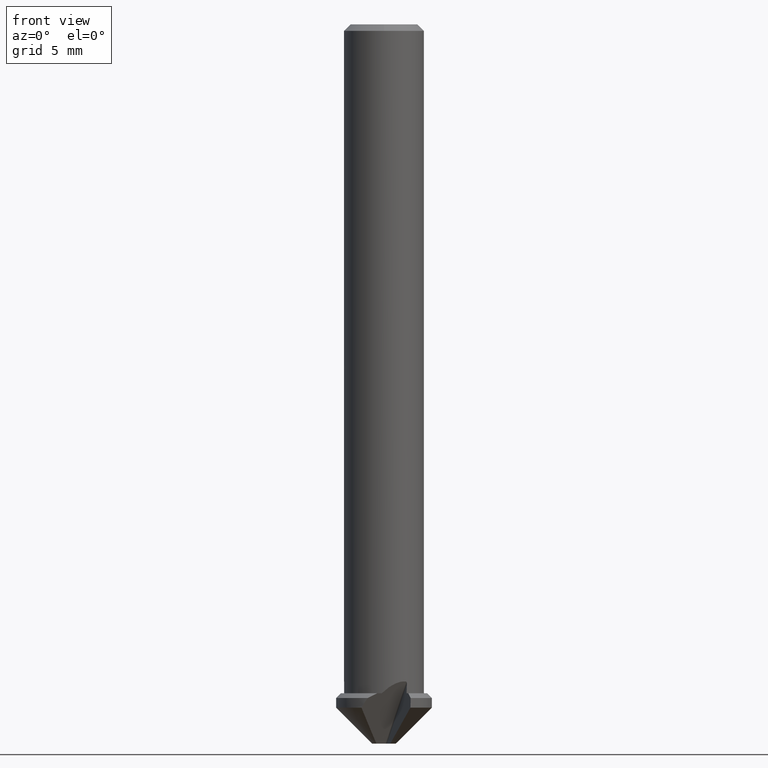
[diagram: clean part render]
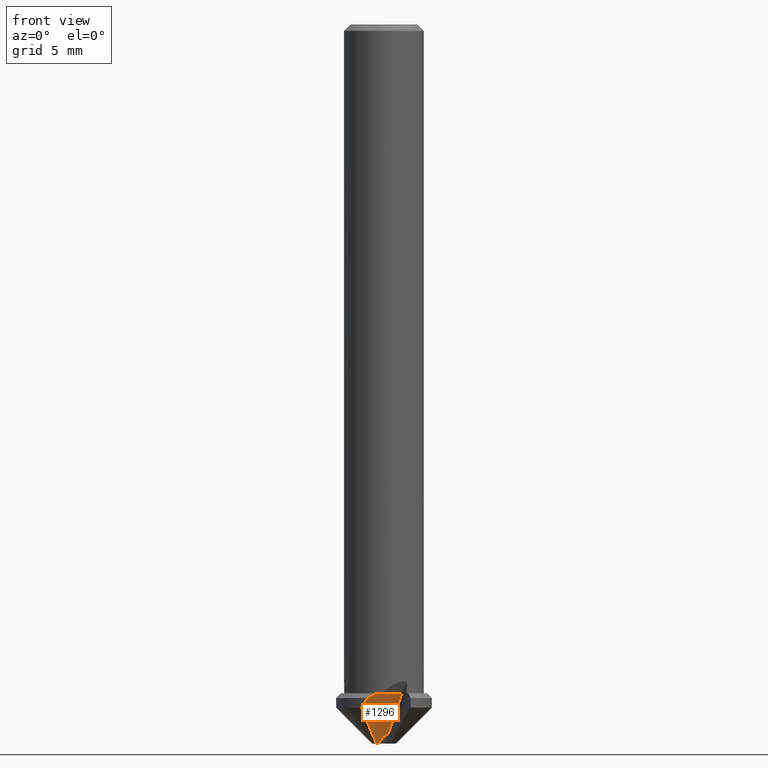
[diagram: same view with one face highlighted and labeled with its STEP entity id]
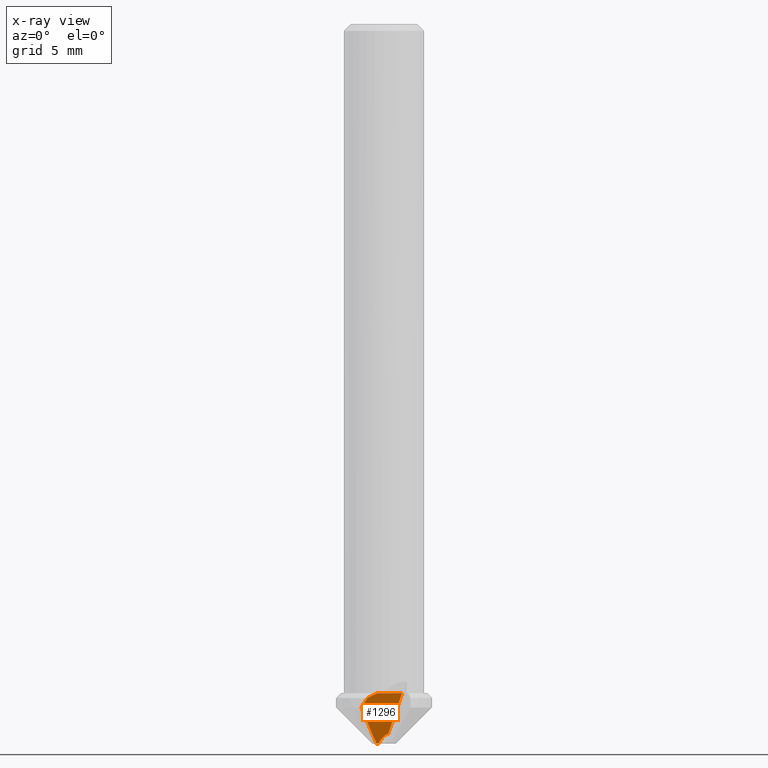
[diagram: x-ray of the same camera — body ghosted, the highlighted face saturated]
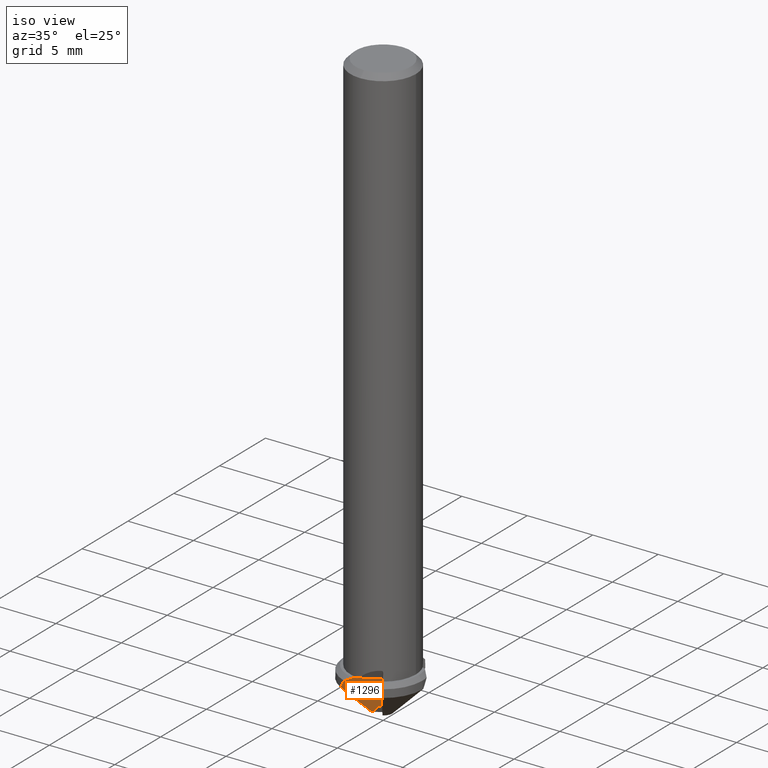
[diagram: same view with one face highlighted and labeled with its STEP entity id]
A machine part, front view. The second image highlights one B-rep face of the part: STEP entity #1296.
The next image is the same camera in x-ray: the body ghosted, the highlighted face saturated — about 0% of this face is hidden behind the body in this view.
A second angle (iso view) of the same face is appended — the face is thin or edge-on in the first view.
In plain terms, the highlighted planar face has unit normal (-0.4441, 0.7437, 0.4997).
Its self-contained STEP definition (entity closure, byte-faithful):
#456=VERTEX_POINT('',#1321);
#514=EDGE_CURVE('',#1054,#456,#1381,.T.);
#654=VERTEX_POINT('',#1537);
#664=VERTEX_POINT('',#1548);
#676=EDGE_CURVE('',#1202,#1196,#1560,.T.);
#776=EDGE_CURVE('',#664,#1212,#1665,.T.);
#938=EDGE_CURVE('',#1196,#998,#1847,.T.);
#950=EDGE_CURVE('',#1212,#654,#1861,.T.);
#956=VERTEX_POINT('',#1867);
#998=VERTEX_POINT('',#1914);
#1030=EDGE_CURVE('',#654,#956,#1947,.T.);
#1054=VERTEX_POINT('',#1971);
#1196=VERTEX_POINT('',#2129);
#1202=VERTEX_POINT('',#2135);
#1212=VERTEX_POINT('',#2146);
#1260=EDGE_CURVE('',#998,#664,#2198,.T.);
#1280=EDGE_CURVE('',#1202,#456,#2218,.T.);
#1296=ADVANCED_FACE('',(#2235),#2236,.F.);
#1300=EDGE_CURVE('',#956,#1054,#2240,.T.);
#1321=CARTESIAN_POINT('',(1.12900714903635,-1.74016039870831,-41.85));
#1381=LINE('',#2378,#2379);
#1537=CARTESIAN_POINT('',(-1.01944901666025,-2.8214754477809,-42.15));
#1548=CARTESIAN_POINT('',(-0.474250993421979,-0.581021510133889,-45.0));
#1560=ELLIPSE('',#2702,1.20073584576875,0.6);
#1665=(B_SPLINE_CURVE(2,(#2957,#2958,#2959),.UNSPECIFIED.,.F.,.F.)B_SPLINE_CURVE_WITH_KNOTS((3,3),(0.0,3.19557728387752),.UNSPECIFIED.)RATIONAL_B_SPLINE_CURVE((1.0,1.2087914720769,1.0))BOUNDED_CURVE()REPRESENTATION_ITEM('')GEOMETRIC_REPRESENTATION_ITEM()CURVE());
#1847=(B_SPLINE_CURVE(2,(#3352,#3353,#3354),.UNSPECIFIED.,.F.,.F.)B_SPLINE_CURVE_WITH_KNOTS((3,3),(0.0,2.05390842824059),.UNSPECIFIED.)RATIONAL_B_SPLINE_CURVE((1.0,3.72611473754677,1.0))BOUNDED_CURVE()REPRESENTATION_ITEM('')GEOMETRIC_REPRESENTATION_ITEM()CURVE());
#1861=ELLIPSE('',#3380,6.00367922884375,3.0);
#1867=CARTESIAN_POINT('',(-0.444873342192458,-2.67323543845403,-41.86));
#1914=CARTESIAN_POINT('',(-0.469682432186166,-0.578293535235945,-45.0));
#1947=(B_SPLINE_CURVE(2,(#3626,#3627,#3628),.UNSPECIFIED.,.F.,.F.)B_SPLINE_CURVE_WITH_KNOTS((3,3),(0.0,0.660674624795349),.UNSPECIFIED.)RATIONAL_B_SPLINE_CURVE((1.0,1.00169448352187,1.0))BOUNDED_CURVE()REPRESENTATION_ITEM('')GEOMETRIC_REPRESENTATION_ITEM()CURVE());
#1971=CARTESIAN_POINT('',(-0.422689988078649,-2.66670830312917,-41.85));
#2129=CARTESIAN_POINT('',(-0.329596308848857,-0.501364411574265,-44.99));
#2135=CARTESIAN_POINT('',(0.270920144440435,-0.535352477659694,-44.4057318701355));
#2146=CARTESIAN_POINT('',(-1.40686086937403,-2.64966837438653,-42.75));
#2198=LINE('',#4157,#4158);
#2218=LINE('',#4194,#4195);
#2235=FACE_OUTER_BOUND('',#4219,.T.);
#2236=PLANE('',#4220);
#2240=(B_SPLINE_CURVE(2,(#4226,#4227,#4228),.UNSPECIFIED.,.F.,.F.)B_SPLINE_CURVE_WITH_KNOTS((3,3),(0.0,0.0251933624838392),.UNSPECIFIED.)RATIONAL_B_SPLINE_CURVE((1.0,1.0000027510867,1.0))BOUNDED_CURVE()REPRESENTATION_ITEM('')GEOMETRIC_REPRESENTATION_ITEM()CURVE());
#2378=CARTESIAN_POINT('',(-4.69274114798236,-5.2164371512049,-41.85));
#2379=VECTOR('',#4283,1.0);
#2702=AXIS2_PLACEMENT_3D('',#4508,#4509,#4510);
#2957=CARTESIAN_POINT('',(-0.474250993421979,-0.58102151013389,-45.0));
#2958=CARTESIAN_POINT('',(-0.686609014382778,-1.03364537559182,-44.5150730610229));
#2959=CARTESIAN_POINT('',(-1.40686086937403,-2.64966837438653,-42.75));
#3352=CARTESIAN_POINT('',(1.00492064424621,0.316519349752464,-45.0212820071702));
#3353=CARTESIAN_POINT('',(0.1449632374194,-0.24277108546395,-44.9531264574469));
#3354=CARTESIAN_POINT('',(-0.755308413910355,-0.734546935107733,-45.0212820071702));
#3380=AXIS2_PLACEMENT_3D('',#4863,#4864,#4865);
#3626=CARTESIAN_POINT('',(-1.01944901666025,-2.8214754477809,-42.15));
#3627=CARTESIAN_POINT('',(-0.720256333914441,-2.75386063261527,-41.9847382576289));
#3628=CARTESIAN_POINT('',(-0.444873342192458,-2.67323543845403,-41.86));
#4157=CARTESIAN_POINT('',(-5.29171408905355,-3.45762044759229,-45.0));
#4158=VECTOR('',#5218,1.0);
#4194=CARTESIAN_POINT('',(0.032592674811545,-0.200725777016934,-45.1155679431642));
#4195=VECTOR('',#5234,1.0);
#4219=EDGE_LOOP('',(#5250,#5251,#5252,#5253,#5254,#5255,#5256,#5257,#5258));
#4220=AXIS2_PLACEMENT_3D('',#5259,#5260,#5261);
#4226=CARTESIAN_POINT('',(-0.444873342192458,-2.67323543845403,-41.86));
#4227=CARTESIAN_POINT('',(-0.433763932091276,-2.66998288338219,-41.8549678502269));
#4228=CARTESIAN_POINT('',(-0.422689988078648,-2.66670830312917,-41.85));
#4283=DIRECTION('',(0.858582265126656,0.512675817656715,-0.0));
#4508=CARTESIAN_POINT('',(0.0,0.0,-45.4432782267687));
#4509=DIRECTION('',(0.444080941659302,-0.74370588129578,-0.499693585491204));
#4510=DIRECTION('',(-0.256180817519519,0.429028050500298,-0.866202240021893));
#4863=CARTESIAN_POINT('',(0.0,0.0,-45.4432782267687));
#4864=DIRECTION('',(-0.444080941659302,0.74370588129578,0.499693585491204));
#4865=DIRECTION('',(-0.256180817519519,0.429028050500298,-0.866202240021893));
#5218=DIRECTION('',(-0.858582265126656,-0.512675817656715,-0.0));
#5234=DIRECTION('',(0.290590911181316,-0.408007847340439,0.865497844507676));
#5250=ORIENTED_EDGE('',*,*,#676,.F.);
#5251=ORIENTED_EDGE('',*,*,#1280,.T.);
#5252=ORIENTED_EDGE('',*,*,#514,.F.);
#5253=ORIENTED_EDGE('',*,*,#1300,.F.);
#5254=ORIENTED_EDGE('',*,*,#1030,.F.);
#5255=ORIENTED_EDGE('',*,*,#950,.F.);
#5256=ORIENTED_EDGE('',*,*,#776,.F.);
#5257=ORIENTED_EDGE('',*,*,#1260,.F.);
#5258=ORIENTED_EDGE('',*,*,#938,.F.);
#5259=CARTESIAN_POINT('',(-10.0745009441026,-6.5157011884705,-44.6990793028196));
#5260=DIRECTION('',(-0.444080941659302,0.74370588129578,0.499693585491204));
#5261=DIRECTION('',(-0.847554741355271,-0.529557512112413,0.0349256606453176));